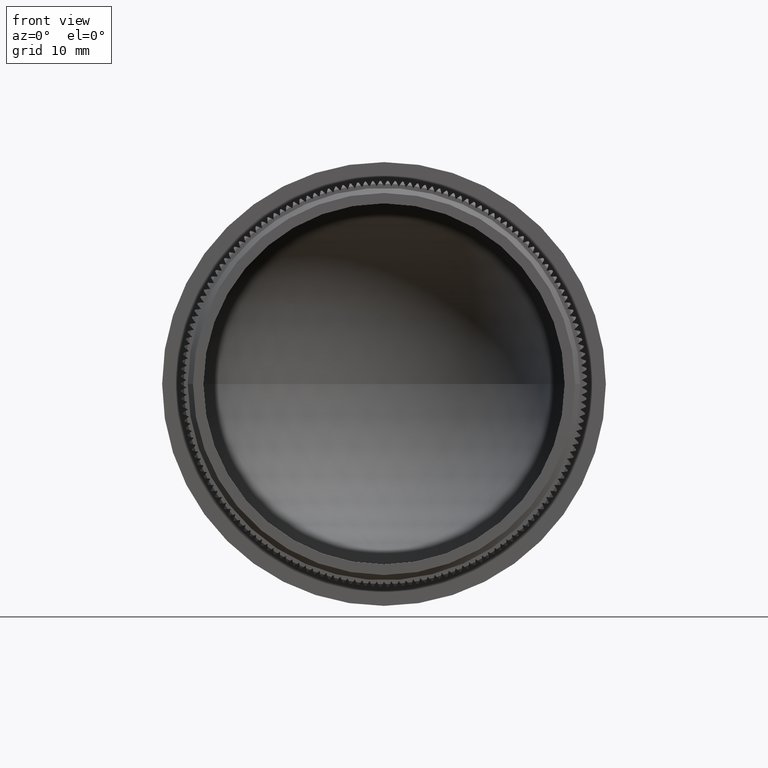
[diagram: clean part render]
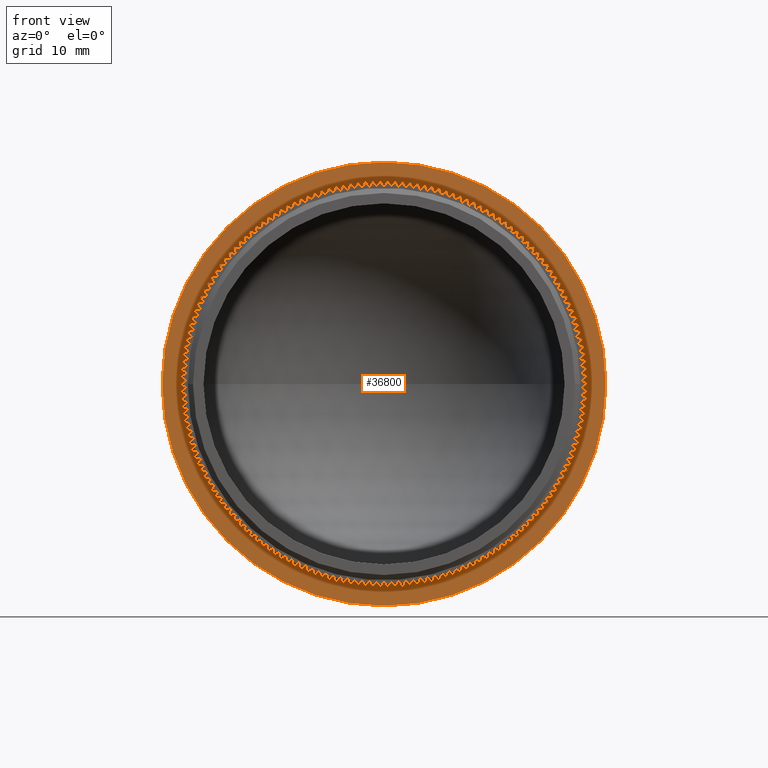
[diagram: same view with one face highlighted and labeled with its STEP entity id]
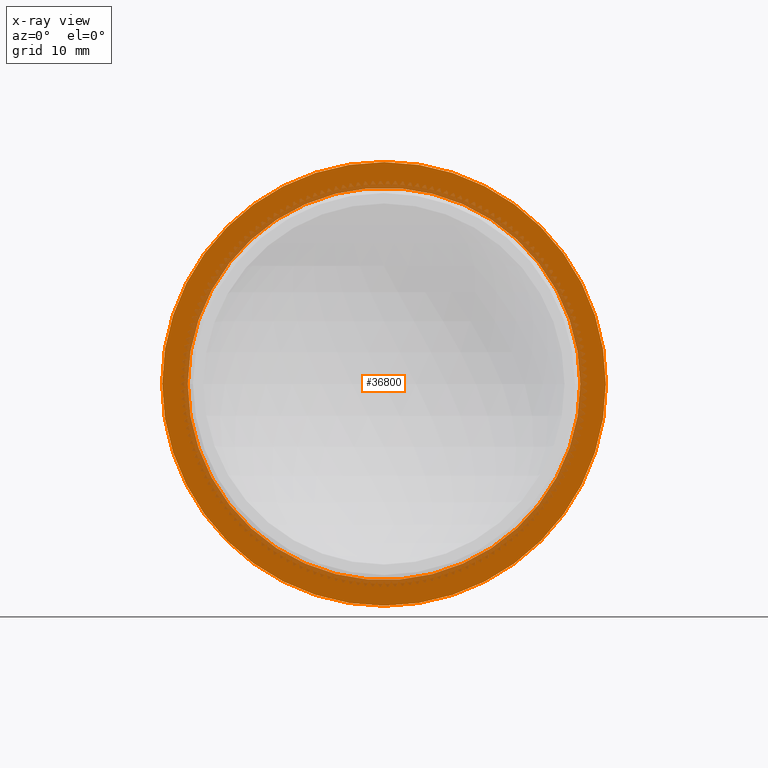
[diagram: x-ray of the same camera — body ghosted, the highlighted face saturated]
A machine part, front view. The second image highlights one B-rep face of the part: STEP entity #36800.
The next image is the same camera in x-ray: the body ghosted, the highlighted face saturated — about 19% of this face is hidden behind the body in this view.
In plain terms, the highlighted planar face has unit normal (-0, -1, 0).
Its self-contained STEP definition (entity closure, byte-faithful):
#147 = VERTEX_POINT ( 'NONE', #15085 ) ;
#1028 = EDGE_CURVE ( 'NONE', #14148, #8597, #16266, .T. ) ;
#1984 = DIRECTION ( 'NONE',  ( 1.000000000000000000, -1.391051843943664400E-015, 0.0000000000000000000 ) ) ;
#2411 = AXIS2_PLACEMENT_3D ( 'NONE', #29593, #12034, #23585 ) ;
#2507 = DIRECTION ( 'NONE',  ( -1.388827867340710000E-015, -1.000000000000000000, 0.0000000000000000000 ) ) ;
#6060 = DIRECTION ( 'NONE',  ( 1.000000000000000000, -1.387778780781443500E-015, 0.0000000000000000000 ) ) ;
#6187 = DIRECTION ( 'NONE',  ( 1.000000000000000000, -1.387778780781443500E-015, 0.0000000000000000000 ) ) ;
#6331 = FACE_BOUND ( 'NONE', #16724, .T. ) ;
#8597 = VERTEX_POINT ( 'NONE', #26200 ) ;
#11188 = ORIENTED_EDGE ( 'NONE', *, *, #12947, .F. ) ;
#12034 = DIRECTION ( 'NONE',  ( -1.388827867340710000E-015, -1.000000000000000000, -0.0000000000000000000 ) ) ;
#12282 = CARTESIAN_POINT ( 'NONE',  ( -18.75000000000005300, 12.20000000000005300, 2.296212748401290700E-015 ) ) ;
#12947 = EDGE_CURVE ( 'NONE', #8597, #14148, #24951, .T. ) ;
#14083 = CARTESIAN_POINT ( 'NONE',  ( 21.19999999999999600, 12.20000000000000100, 0.0000000000000000000 ) ) ;
#14148 = VERTEX_POINT ( 'NONE', #12282 ) ;
#14191 = FACE_OUTER_BOUND ( 'NONE', #21508, .T. ) ;
#14488 = DIRECTION ( 'NONE',  ( -1.388827867340710000E-015, -1.000000000000000000, -0.0000000000000000000 ) ) ;
#14942 = ORIENTED_EDGE ( 'NONE', *, *, #1028, .F. ) ;
#15085 = CARTESIAN_POINT ( 'NONE',  ( -21.20000000000004900, 12.20000000000006000, 2.596251214192391900E-015 ) ) ;
#15246 = CIRCLE ( 'NONE', #28503, 21.20000000000002400 ) ;
#16266 = CIRCLE ( 'NONE', #20480, 18.75000000000002800 ) ;
#16724 = EDGE_LOOP ( 'NONE', ( #11188, #14942 ) ) ;
#19979 = CIRCLE ( 'NONE', #2411, 21.20000000000002400 ) ;
#20463 = CARTESIAN_POINT ( 'NONE',  ( -2.777655734681415300E-014, 12.20000000000002600, 0.0000000000000000000 ) ) ;
#20480 = AXIS2_PLACEMENT_3D ( 'NONE', #21107, #35438, #6187 ) ;
#21107 = CARTESIAN_POINT ( 'NONE',  ( -2.777655734681415300E-014, 12.20000000000002600, 0.0000000000000000000 ) ) ;
#21508 = EDGE_LOOP ( 'NONE', ( #33514, #23584 ) ) ;
#23584 = ORIENTED_EDGE ( 'NONE', *, *, #30538, .T. ) ;
#23585 = DIRECTION ( 'NONE',  ( 1.000000000000000000, -1.391051843943664400E-015, 0.0000000000000000000 ) ) ;
#24951 = CIRCLE ( 'NONE', #32519, 18.75000000000002800 ) ;
#26200 = CARTESIAN_POINT ( 'NONE',  ( 18.75000000000000000, 12.20000000000000100, 0.0000000000000000000 ) ) ;
#28503 = AXIS2_PLACEMENT_3D ( 'NONE', #33789, #34162, #1984 ) ;
#29593 = CARTESIAN_POINT ( 'NONE',  ( -2.777655734681414700E-014, 12.20000000000002900, 0.0000000000000000000 ) ) ;
#30538 = EDGE_CURVE ( 'NONE', #147, #32399, #19979, .T. ) ;
#32399 = VERTEX_POINT ( 'NONE', #14083 ) ;
#32519 = AXIS2_PLACEMENT_3D ( 'NONE', #20463, #14488, #6060 ) ;
#33514 = ORIENTED_EDGE ( 'NONE', *, *, #33950, .T. ) ;
#33789 = CARTESIAN_POINT ( 'NONE',  ( -2.777655734681414700E-014, 12.20000000000002900, 0.0000000000000000000 ) ) ;
#33950 = EDGE_CURVE ( 'NONE', #32399, #147, #15246, .T. ) ;
#34162 = DIRECTION ( 'NONE',  ( -1.388827867340710000E-015, -1.000000000000000000, -0.0000000000000000000 ) ) ;
#34567 = DIRECTION ( 'NONE',  ( 1.000000000000000000, -1.388827867340710000E-015, 0.0000000000000000000 ) ) ;
#35438 = DIRECTION ( 'NONE',  ( -1.388827867340710000E-015, -1.000000000000000000, -0.0000000000000000000 ) ) ;
#35651 = AXIS2_PLACEMENT_3D ( 'NONE', #37744, #2507, #34567 ) ;
#36800 = ADVANCED_FACE ( 'NONE', ( #14191, #6331 ), #37882, .T. ) ;
#37744 = CARTESIAN_POINT ( 'NONE',  ( 21.19999999999999600, 12.19999999999999800, 0.0000000000000000000 ) ) ;
#37882 = PLANE ( 'NONE',  #35651 ) ;